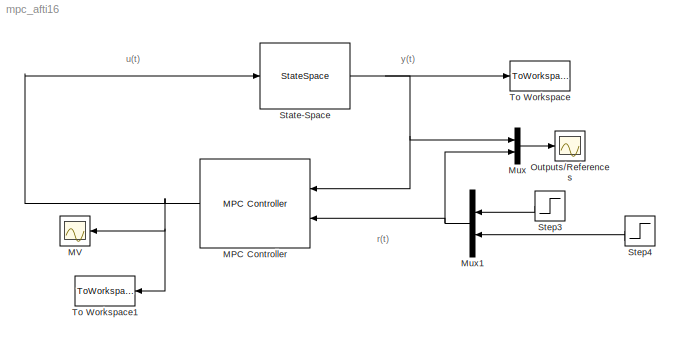
MODEL mpc_afti16
KIND model
BLOCK [Reference] MPC Controller  REF=mpclib/MPC Controller  (lib defined in mdl_ae329e0e0455)
  Ports = [2, 1]
  ShowPortLabels = on
  SourceBlock = mpclib/MPC Controller
  SourceType = MPC
  from_project = off
  md_from_ws = off
  md_inport = off
  md_preview = on
  md_signal_name = []
  mpcobj = mpcafti
  n_mv = 0
  project_file = MPCtask.mat
  ref_from_ws = off
  ref_preview = on
  ref_signal_name = []
  x0 = []
BLOCK [Scope] MV
  DataFormat = Structure
  NumInputPorts = 1
  Ports = [1]
  TimeRange = 2
  YMax = 30
  YMin = -20
  ZoomMode = yonly
BLOCK [Mux] Mux
  DisplayOption = bar
  Inputs = 2
  Ports = [2, 1]
BLOCK [Mux] Mux1
  DisplayOption = bar
  Inputs = 2
  Ports = [2, 1]
BLOCK [Scope] Outputs//References
  DataFormat = Structure
  NumInputPorts = 1
  Ports = [1]
  TimeRange = 2
  YMax = 15
  ZoomMode = yonly
BLOCK [StateSpace] State-Space
  A = A
  B = B
  C = C
  D = D
  X0 = x0
BLOCK [Step] Step3
  After = 0
  SampleTime = 0
  Time = 0
BLOCK [Step] Step4
  After = 10
  SampleTime = 0
  Time = 0
BLOCK [ToWorkspace] To Workspace
  MaxDataPoints = inf
  SampleTime = -1
  SaveFormat = Array
  VariableName = y
BLOCK [ToWorkspace] To Workspace1
  MaxDataPoints = inf
  SampleTime = -1
  SaveFormat = Array
  VariableName = u
ANNOTATION (root): r(t)
ANNOTATION (root): u(t)
ANNOTATION (root): y(t)
NET MPC Controller:1 -> MV:1, State-Space:1, To Workspace1:1
NET Mux1:1 -> MPC Controller:2, Mux:2
LINE Mux:1 -> Outputs//References:1
NET State-Space:1 -> MPC Controller:1, Mux:1, To Workspace:1
LINE Step3:1 -> Mux1:1
LINE Step4:1 -> Mux1:2
note: NET lines group one-source signal fan-out (src -> all destinations, sorted); 1:1 wires keep LINE
